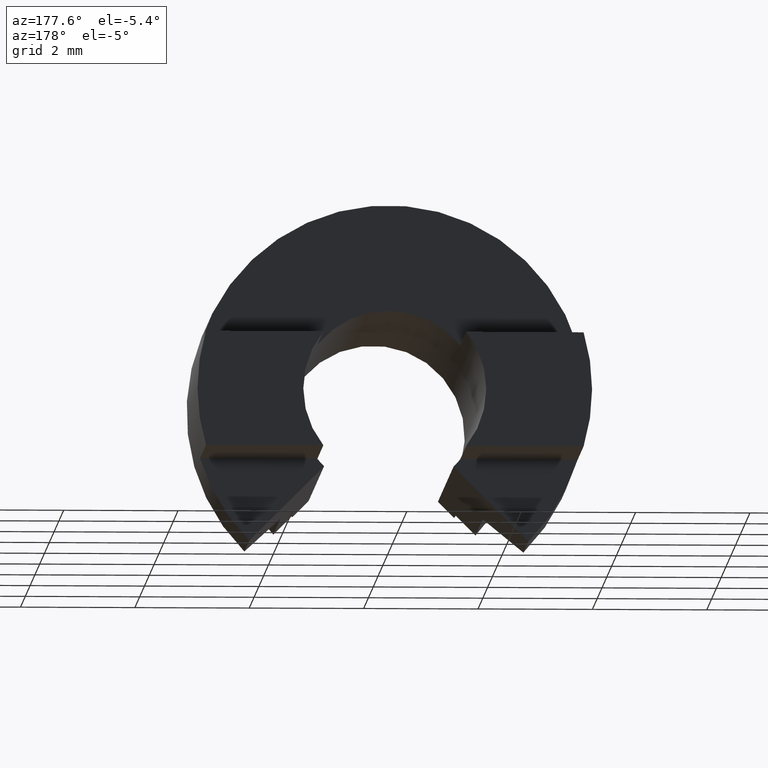
[diagram: clean part render]
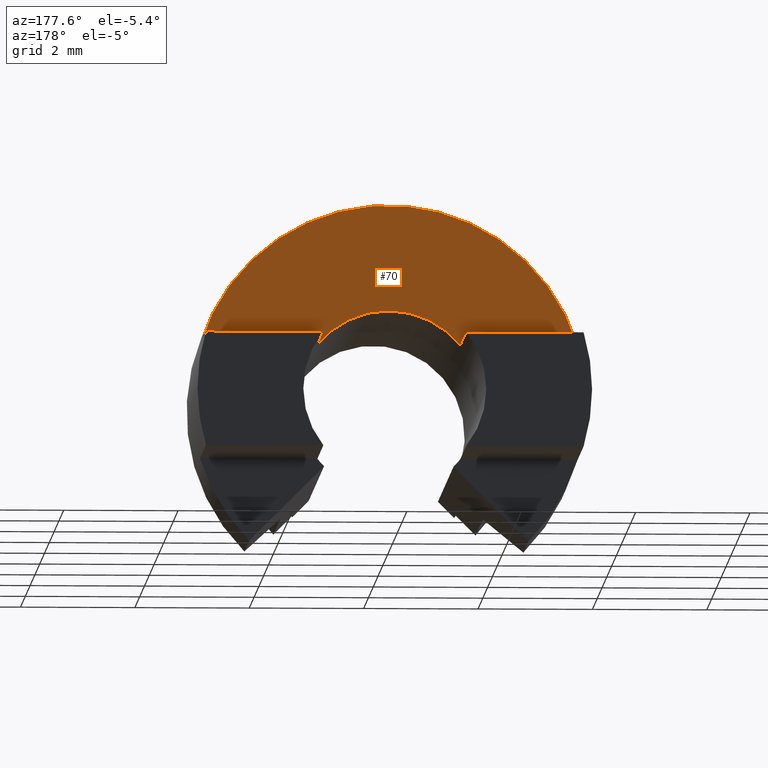
[diagram: same view with one face highlighted and labeled with its STEP entity id]
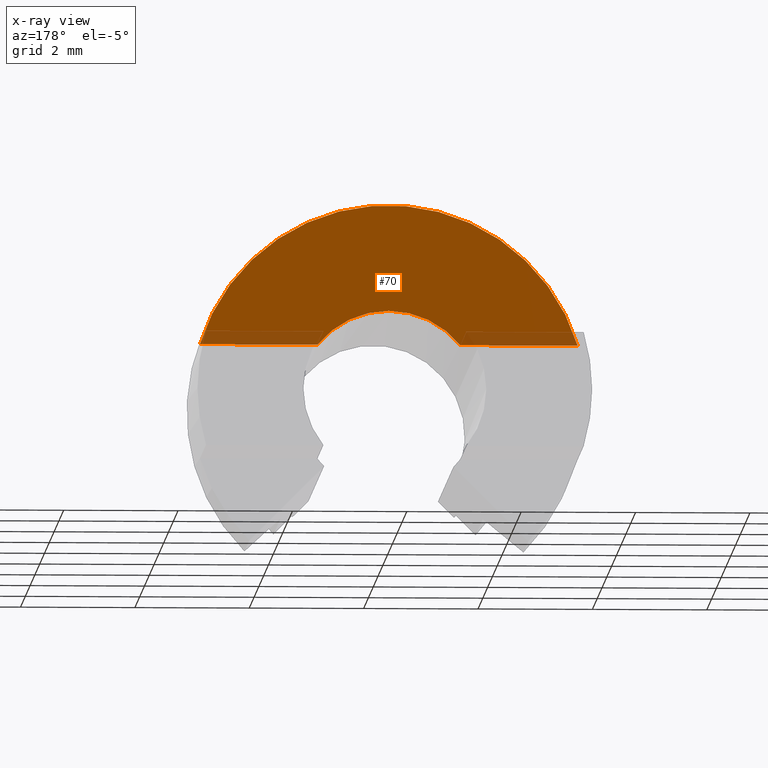
[diagram: x-ray of the same camera — body ghosted, the highlighted face saturated]
A machine part, auxiliary view. The second image highlights one B-rep face of the part: STEP entity #70.
The next image is the same camera in x-ray: the body ghosted, the highlighted face saturated — about 9% of this face is hidden behind the body in this view.
In plain terms, the highlighted planar face has unit normal (0, 1, 0).
Its self-contained STEP definition (entity closure, byte-faithful):
#70 = ADVANCED_FACE( '', ( #137 ), #138, .T. );
#137 = FACE_OUTER_BOUND( '', #198, .T. );
#138 = PLANE( '', #199 );
#198 = EDGE_LOOP( '', ( #339, #340, #341, #342 ) );
#199 = AXIS2_PLACEMENT_3D( '', #343, #344, #345 );
#339 = ORIENTED_EDGE( '', *, *, #439, .T. );
#340 = ORIENTED_EDGE( '', *, *, #381, .F. );
#341 = ORIENTED_EDGE( '', *, *, #407, .F. );
#342 = ORIENTED_EDGE( '', *, *, #391, .F. );
#343 = CARTESIAN_POINT( '', ( 0.000000000000000, 6.49999999999998, 0.000000000000000 ) );
#344 = DIRECTION( '', ( 0.000000000000000, 1.00000000000000, 0.000000000000000 ) );
#345 = DIRECTION( '', ( 0.000000000000000, 0.000000000000000, -1.00000000000000 ) );
#381 = EDGE_CURVE( '', #448, #450, #451, .T. );
#391 = EDGE_CURVE( '', #466, #468, #469, .T. );
#407 = EDGE_CURVE( '', #468, #448, #495, .T. );
#439 = EDGE_CURVE( '', #466, #450, #537, .F. );
#448 = VERTEX_POINT( '', #547 );
#450 = VERTEX_POINT( '', #550 );
#451 = LINE( '', #551, #552 );
#466 = VERTEX_POINT( '', #571 );
#468 = VERTEX_POINT( '', #574 );
#469 = LINE( '', #575, #576 );
#495 = CIRCLE( '', #609, 3.45000000000000 );
#537 = CIRCLE( '', #667, 1.60000000000000 );
#547 = CARTESIAN_POINT( '', ( -3.30189339621981, 6.49999999999998, 1.00000000000000 ) );
#550 = CARTESIAN_POINT( '', ( -1.24899959967968, 6.49999999999998, 1.00000000000000 ) );
#551 = CARTESIAN_POINT( '', ( -3.30189339621981, 6.49999999999998, 1.00000000000000 ) );
#552 = VECTOR( '', #674, 1000.00000000000 );
#571 = CARTESIAN_POINT( '', ( 1.24899959967968, 6.49999999999998, 1.00000000000000 ) );
#574 = CARTESIAN_POINT( '', ( 3.30189339621981, 6.49999999999998, 1.00000000000000 ) );
#575 = CARTESIAN_POINT( '', ( -3.30189339621981, 6.49999999999998, 1.00000000000000 ) );
#576 = VECTOR( '', #686, 1000.00000000000 );
#609 = AXIS2_PLACEMENT_3D( '', #712, #713, #714 );
#667 = AXIS2_PLACEMENT_3D( '', #746, #747, #748 );
#674 = DIRECTION( '', ( 1.00000000000000, 0.000000000000000, 0.000000000000000 ) );
#686 = DIRECTION( '', ( 1.00000000000000, 0.000000000000000, 0.000000000000000 ) );
#712 = CARTESIAN_POINT( '', ( 0.000000000000000, 6.49999999999998, 0.000000000000000 ) );
#713 = DIRECTION( '', ( -0.000000000000000, -1.00000000000000, 0.000000000000000 ) );
#714 = DIRECTION( '', ( -0.707106781186545, 0.000000000000000, 0.707106781186549 ) );
#746 = CARTESIAN_POINT( '', ( 0.000000000000000, 6.49999999999998, 0.000000000000000 ) );
#747 = DIRECTION( '', ( 0.000000000000000, 1.00000000000000, 0.000000000000000 ) );
#748 = DIRECTION( '', ( 0.000000000000000, -0.000000000000000, 1.00000000000000 ) );